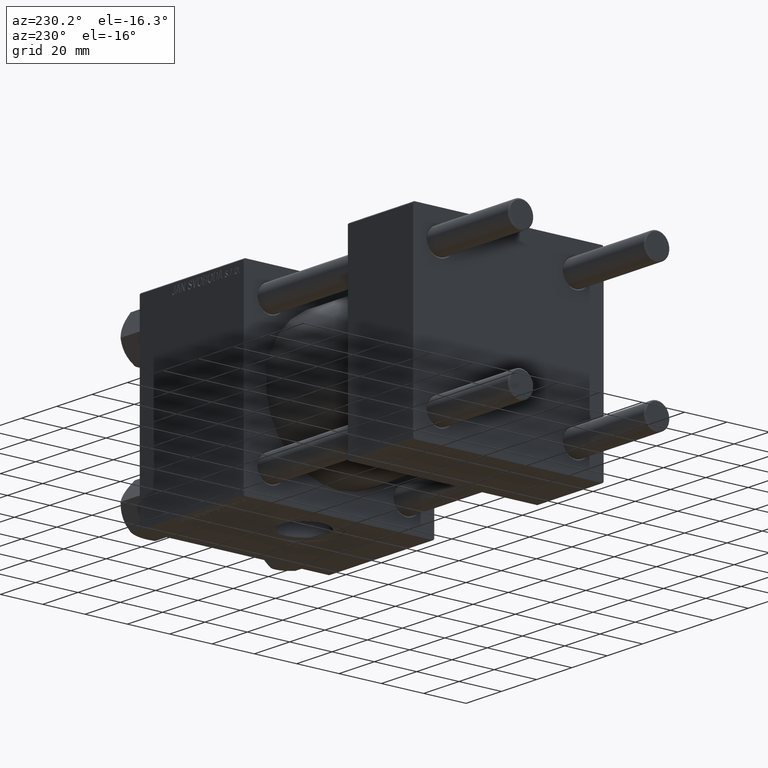
[diagram: clean part render]
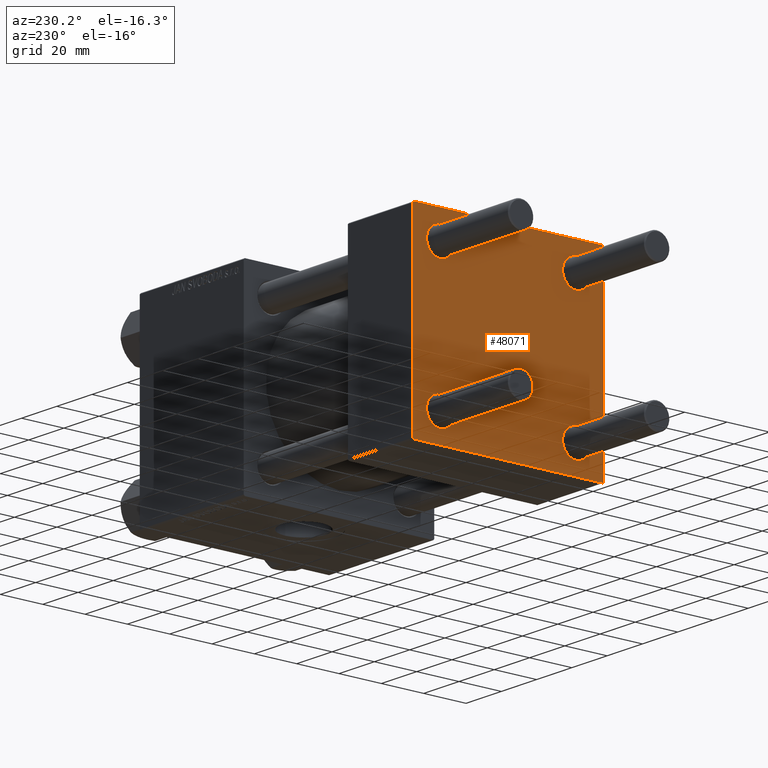
[diagram: same view with one face highlighted and labeled with its STEP entity id]
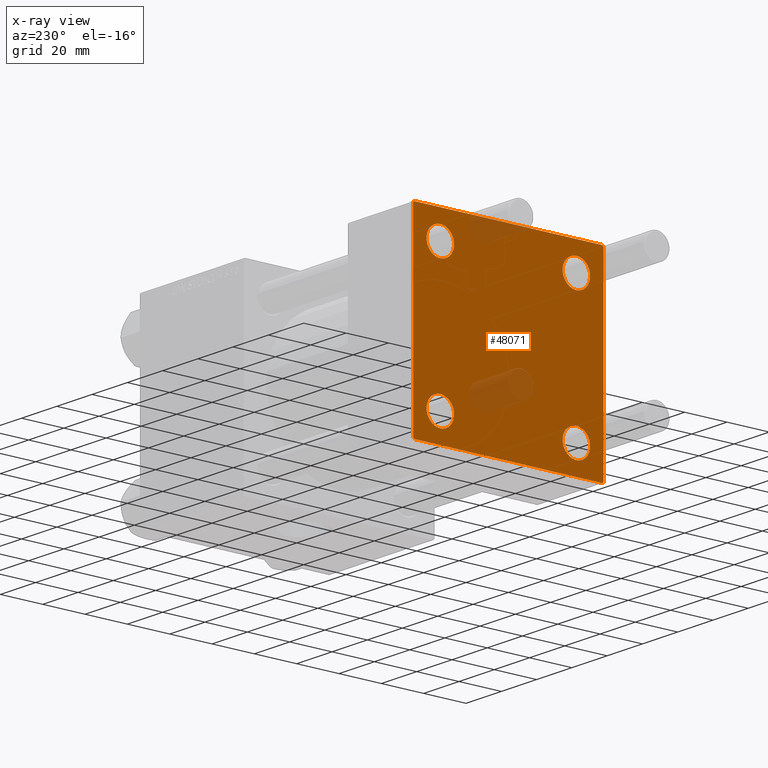
[diagram: x-ray of the same camera — body ghosted, the highlighted face saturated]
A machine part, auxiliary view. The second image highlights one B-rep face of the part: STEP entity #48071.
The next image is the same camera in x-ray: the body ghosted, the highlighted face saturated — about 7% of this face is hidden behind the body in this view.
In plain terms, the highlighted planar face has unit normal (-1, 0, 0).
Its self-contained STEP definition (entity closure, byte-faithful):
#356 = DIRECTION ( 'NONE',  ( 0.000000000000000000, -1.000000000000000000, -1.541976423090495633E-16 ) ) ;
#414 = DIRECTION ( 'NONE',  ( 0.000000000000000000, 0.000000000000000000, 1.000000000000000000 ) ) ;
#646 = AXIS2_PLACEMENT_3D ( 'NONE', #45941, #4719, #414 ) ;
#793 = ORIENTED_EDGE ( 'NONE', *, *, #44628, .F. ) ;
#1428 = AXIS2_PLACEMENT_3D ( 'NONE', #9106, #5552, #36399 ) ;
#1488 = CARTESIAN_POINT ( 'NONE',  ( 0.000000000000000000, -32.14999999999997726, 25.64999999999999147 ) ) ;
#1495 = VERTEX_POINT ( 'NONE', #1488 ) ;
#1712 = EDGE_CURVE ( 'NONE', #42425, #43292, #35413, .T. ) ;
#2007 = CARTESIAN_POINT ( 'NONE',  ( 0.000000000000000000, -32.14999999999997726, -38.64999999999999147 ) ) ;
#2416 = ORIENTED_EDGE ( 'NONE', *, *, #47906, .T. ) ;
#4650 = CIRCLE ( 'NONE', #20818, 6.499999999999977796 ) ;
#4719 = DIRECTION ( 'NONE',  ( 1.000000000000000000, -0.000000000000000000, 0.000000000000000000 ) ) ;
#5089 = VERTEX_POINT ( 'NONE', #21264 ) ;
#5098 = LINE ( 'NONE', #8228, #43207 ) ;
#5173 = DIRECTION ( 'NONE',  ( -0.000000000000000000, -0.7071067811865474617, -0.7071067811865474617 ) ) ;
#5552 = DIRECTION ( 'NONE',  ( 1.000000000000000000, -0.000000000000000000, 0.000000000000000000 ) ) ;
#5956 = EDGE_CURVE ( 'NONE', #39986, #1495, #37113, .T. ) ;
#6195 = VERTEX_POINT ( 'NONE', #46238 ) ;
#7716 = ORIENTED_EDGE ( 'NONE', *, *, #22019, .T. ) ;
#7892 = VECTOR ( 'NONE', #15500, 1000.000000000000000 ) ;
#7951 = CIRCLE ( 'NONE', #646, 6.499999999999977796 ) ;
#8185 = EDGE_CURVE ( 'NONE', #21867, #11467, #15914, .T. ) ;
#8225 = LINE ( 'NONE', #39286, #48883 ) ;
#8228 = CARTESIAN_POINT ( 'NONE',  ( 0.000000000000000000, 44.99999999999998579, -44.99999999999998579 ) ) ;
#9106 = CARTESIAN_POINT ( 'NONE',  ( 0.000000000000000000, 32.14999999999999147, -32.15000000000000568 ) ) ;
#9408 = CARTESIAN_POINT ( 'NONE',  ( 0.000000000000000000, 32.14999999999999147, 32.15000000000000568 ) ) ;
#9500 = DIRECTION ( 'NONE',  ( 1.000000000000000000, -0.000000000000000000, 0.000000000000000000 ) ) ;
#9586 = ORIENTED_EDGE ( 'NONE', *, *, #12523, .T. ) ;
#9848 = DIRECTION ( 'NONE',  ( 0.000000000000000000, 0.000000000000000000, 1.000000000000000000 ) ) ;
#10130 = EDGE_LOOP ( 'NONE', ( #29462, #24159, #9586, #2416, #20839, #43015, #793, #38709 ) ) ;
#10407 = AXIS2_PLACEMENT_3D ( 'NONE', #17690, #44465, #9848 ) ;
#11467 = VERTEX_POINT ( 'NONE', #45111 ) ;
#11612 = VERTEX_POINT ( 'NONE', #19841 ) ;
#11666 = DIRECTION ( 'NONE',  ( 0.000000000000000000, 7.709882115452476934E-17, -1.000000000000000000 ) ) ;
#11730 = ORIENTED_EDGE ( 'NONE', *, *, #5956, .T. ) ;
#11922 = CIRCLE ( 'NONE', #1428, 6.499999999999977796 ) ;
#12523 = EDGE_CURVE ( 'NONE', #25565, #11612, #5098, .T. ) ;
#12764 = CARTESIAN_POINT ( 'NONE',  ( 0.000000000000000000, 32.14999999999999147, -32.15000000000000568 ) ) ;
#12854 = DIRECTION ( 'NONE',  ( -0.000000000000000000, 0.7071067811865425767, 0.7071067811865524577 ) ) ;
#12996 = AXIS2_PLACEMENT_3D ( 'NONE', #13392, #43970, #35897 ) ;
#13392 = CARTESIAN_POINT ( 'NONE',  ( 0.000000000000000000, -32.14999999999997726, -32.15000000000001279 ) ) ;
#13823 = DIRECTION ( 'NONE',  ( 0.000000000000000000, 0.000000000000000000, -1.000000000000000000 ) ) ;
#14268 = CARTESIAN_POINT ( 'NONE',  ( 0.000000000000000000, -32.14999999999997726, 32.15000000000001279 ) ) ;
#15500 = DIRECTION ( 'NONE',  ( 0.000000000000000000, -1.000000000000000000, -1.541976423090495387E-16 ) ) ;
#15529 = AXIS2_PLACEMENT_3D ( 'NONE', #48426, #9500, #47668 ) ;
#15914 = LINE ( 'NONE', #46998, #35820 ) ;
#16310 = DIRECTION ( 'NONE',  ( 0.000000000000000000, -0.7071067811865474617, 0.7071067811865474617 ) ) ;
#16925 = ORIENTED_EDGE ( 'NONE', *, *, #23566, .T. ) ;
#17690 = CARTESIAN_POINT ( 'NONE',  ( 0.000000000000000000, -32.14999999999997726, 32.15000000000001279 ) ) ;
#17767 = EDGE_LOOP ( 'NONE', ( #7716, #30962 ) ) ;
#17865 = ORIENTED_EDGE ( 'NONE', *, *, #30551, .T. ) ;
#19037 = LINE ( 'NONE', #34711, #7892 ) ;
#19608 = DIRECTION ( 'NONE',  ( 0.000000000000000000, 0.7071067811865474617, -0.7071067811865474617 ) ) ;
#19841 = CARTESIAN_POINT ( 'NONE',  ( 0.000000000000000000, -44.49999999999995737, -45.00000000000000000 ) ) ;
#20424 = VERTEX_POINT ( 'NONE', #26136 ) ;
#20818 = AXIS2_PLACEMENT_3D ( 'NONE', #9408, #36459, #24845 ) ;
#20839 = ORIENTED_EDGE ( 'NONE', *, *, #36723, .F. ) ;
#21264 = CARTESIAN_POINT ( 'NONE',  ( 0.000000000000000000, 44.99999999999998579, -44.49999999999995737 ) ) ;
#21792 = FACE_OUTER_BOUND ( 'NONE', #10130, .T. ) ;
#21794 = EDGE_CURVE ( 'NONE', #36267, #39742, #4650, .T. ) ;
#21867 = VERTEX_POINT ( 'NONE', #43236 ) ;
#22019 = EDGE_CURVE ( 'NONE', #43292, #42425, #11922, .T. ) ;
#23067 = CARTESIAN_POINT ( 'NONE',  ( 0.000000000000000000, -45.00000000000000711, 45.00000000000000000 ) ) ;
#23115 = VECTOR ( 'NONE', #11666, 1000.000000000000000 ) ;
#23165 = EDGE_LOOP ( 'NONE', ( #17865, #39717 ) ) ;
#23566 = EDGE_CURVE ( 'NONE', #39742, #36267, #7951, .T. ) ;
#24159 = ORIENTED_EDGE ( 'NONE', *, *, #25489, .T. ) ;
#24167 = VERTEX_POINT ( 'NONE', #47758 ) ;
#24265 = EDGE_CURVE ( 'NONE', #1495, #39986, #39447, .T. ) ;
#24421 = CARTESIAN_POINT ( 'NONE',  ( 0.000000000000000000, 44.74999999999998579, -44.74999999999998579 ) ) ;
#24845 = DIRECTION ( 'NONE',  ( 0.000000000000000000, 0.000000000000000000, 1.000000000000000000 ) ) ;
#25071 = VECTOR ( 'NONE', #13823, 1000.000000000000000 ) ;
#25489 = EDGE_CURVE ( 'NONE', #5089, #25565, #44352, .T. ) ;
#25565 = VERTEX_POINT ( 'NONE', #30175 ) ;
#26136 = CARTESIAN_POINT ( 'NONE',  ( 0.000000000000000000, 44.49999999999998579, 45.00000000000001421 ) ) ;
#26660 = DIRECTION ( 'NONE',  ( 1.000000000000000000, -0.000000000000000000, 0.000000000000000000 ) ) ;
#27355 = LINE ( 'NONE', #23067, #23115 ) ;
#27445 = CARTESIAN_POINT ( 'NONE',  ( 0.000000000000000000, -44.74999999999998579, -44.74999999999998579 ) ) ;
#27464 = ORIENTED_EDGE ( 'NONE', *, *, #21794, .T. ) ;
#28181 = FACE_BOUND ( 'NONE', #40789, .T. ) ;
#28954 = EDGE_CURVE ( 'NONE', #24167, #5089, #33041, .T. ) ;
#29001 = VECTOR ( 'NONE', #5173, 1000.000000000000114 ) ;
#29162 = CARTESIAN_POINT ( 'NONE',  ( 0.000000000000000000, -32.14999999999997726, -25.65000000000003411 ) ) ;
#29246 = CARTESIAN_POINT ( 'NONE',  ( 0.000000000000000000, 44.99999999999998579, 45.00000000000001421 ) ) ;
#29462 = ORIENTED_EDGE ( 'NONE', *, *, #28954, .T. ) ;
#30175 = CARTESIAN_POINT ( 'NONE',  ( 0.000000000000000000, 44.49999999999998579, -44.99999999999998579 ) ) ;
#30551 = EDGE_CURVE ( 'NONE', #36636, #32903, #49329, .T. ) ;
#30962 = ORIENTED_EDGE ( 'NONE', *, *, #1712, .T. ) ;
#31469 = CARTESIAN_POINT ( 'NONE',  ( 0.000000000000000000, 32.14999999999999147, -25.65000000000002700 ) ) ;
#31478 = LINE ( 'NONE', #27445, #34684 ) ;
#31501 = DIRECTION ( 'NONE',  ( 1.000000000000000000, -0.000000000000000000, 0.000000000000000000 ) ) ;
#31502 = AXIS2_PLACEMENT_3D ( 'NONE', #14268, #26660, #42060 ) ;
#31950 = FACE_BOUND ( 'NONE', #23165, .T. ) ;
#32903 = VERTEX_POINT ( 'NONE', #2007 ) ;
#33041 = LINE ( 'NONE', #29246, #25071 ) ;
#33642 = EDGE_CURVE ( 'NONE', #32903, #36636, #42985, .T. ) ;
#33647 = DIRECTION ( 'NONE',  ( -1.000000000000000000, 0.000000000000000000, -0.000000000000000000 ) ) ;
#34684 = VECTOR ( 'NONE', #16310, 1000.000000000000114 ) ;
#34711 = CARTESIAN_POINT ( 'NONE',  ( 0.000000000000000000, 44.99999999999998579, 45.00000000000001421 ) ) ;
#35413 = CIRCLE ( 'NONE', #41849, 6.499999999999977796 ) ;
#35820 = VECTOR ( 'NONE', #12854, 1000.000000000000114 ) ;
#35897 = DIRECTION ( 'NONE',  ( 0.000000000000000000, 0.000000000000000000, 1.000000000000000000 ) ) ;
#35990 = EDGE_LOOP ( 'NONE', ( #27464, #16925 ) ) ;
#36267 = VERTEX_POINT ( 'NONE', #43860 ) ;
#36399 = DIRECTION ( 'NONE',  ( 0.000000000000000000, 0.000000000000000000, 1.000000000000000000 ) ) ;
#36459 = DIRECTION ( 'NONE',  ( 1.000000000000000000, -0.000000000000000000, 0.000000000000000000 ) ) ;
#36636 = VERTEX_POINT ( 'NONE', #29162 ) ;
#36723 = EDGE_CURVE ( 'NONE', #21867, #6195, #27355, .T. ) ;
#37113 = CIRCLE ( 'NONE', #31502, 6.500000000000019540 ) ;
#37187 = CARTESIAN_POINT ( 'NONE',  ( 0.000000000000000000, 0.000000000000000000, 0.000000000000000000 ) ) ;
#37878 = CARTESIAN_POINT ( 'NONE',  ( 0.000000000000000000, 32.14999999999999147, -38.64999999999998437 ) ) ;
#38586 = EDGE_CURVE ( 'NONE', #20424, #24167, #8225, .T. ) ;
#38709 = ORIENTED_EDGE ( 'NONE', *, *, #38586, .T. ) ;
#39286 = CARTESIAN_POINT ( 'NONE',  ( 0.000000000000000000, 44.74999999999999289, 44.74999999999999289 ) ) ;
#39447 = CIRCLE ( 'NONE', #10407, 6.500000000000019540 ) ;
#39500 = AXIS2_PLACEMENT_3D ( 'NONE', #37187, #33647, #49062 ) ;
#39538 = FACE_BOUND ( 'NONE', #35990, .T. ) ;
#39717 = ORIENTED_EDGE ( 'NONE', *, *, #33642, .T. ) ;
#39742 = VERTEX_POINT ( 'NONE', #44279 ) ;
#39986 = VERTEX_POINT ( 'NONE', #46272 ) ;
#40789 = EDGE_LOOP ( 'NONE', ( #11730, #43972 ) ) ;
#41849 = AXIS2_PLACEMENT_3D ( 'NONE', #12764, #31501, #43604 ) ;
#42060 = DIRECTION ( 'NONE',  ( 0.000000000000000000, 0.000000000000000000, 1.000000000000000000 ) ) ;
#42425 = VERTEX_POINT ( 'NONE', #37878 ) ;
#42985 = CIRCLE ( 'NONE', #15529, 6.499999999999977796 ) ;
#43015 = ORIENTED_EDGE ( 'NONE', *, *, #8185, .T. ) ;
#43207 = VECTOR ( 'NONE', #356, 1000.000000000000000 ) ;
#43236 = CARTESIAN_POINT ( 'NONE',  ( 0.000000000000000000, -45.00000000000000711, 44.49999999999997158 ) ) ;
#43292 = VERTEX_POINT ( 'NONE', #31469 ) ;
#43581 = FACE_BOUND ( 'NONE', #17767, .T. ) ;
#43604 = DIRECTION ( 'NONE',  ( 0.000000000000000000, 0.000000000000000000, 1.000000000000000000 ) ) ;
#43860 = CARTESIAN_POINT ( 'NONE',  ( 0.000000000000000000, 32.14999999999999147, 38.64999999999999147 ) ) ;
#43970 = DIRECTION ( 'NONE',  ( 1.000000000000000000, -0.000000000000000000, 0.000000000000000000 ) ) ;
#43972 = ORIENTED_EDGE ( 'NONE', *, *, #24265, .T. ) ;
#44279 = CARTESIAN_POINT ( 'NONE',  ( 0.000000000000000000, 32.14999999999999147, 25.65000000000002700 ) ) ;
#44352 = LINE ( 'NONE', #24421, #29001 ) ;
#44465 = DIRECTION ( 'NONE',  ( 1.000000000000000000, -0.000000000000000000, 0.000000000000000000 ) ) ;
#44628 = EDGE_CURVE ( 'NONE', #20424, #11467, #19037, .T. ) ;
#45111 = CARTESIAN_POINT ( 'NONE',  ( 0.000000000000000000, -44.49999999999995737, 45.00000000000000000 ) ) ;
#45941 = CARTESIAN_POINT ( 'NONE',  ( 0.000000000000000000, 32.14999999999999147, 32.15000000000000568 ) ) ;
#46238 = CARTESIAN_POINT ( 'NONE',  ( 0.000000000000000000, -45.00000000000000000, -44.49999999999995737 ) ) ;
#46272 = CARTESIAN_POINT ( 'NONE',  ( 0.000000000000000000, -32.14999999999997726, 38.65000000000003411 ) ) ;
#46998 = CARTESIAN_POINT ( 'NONE',  ( -0.000000000000000000, -44.75000000000029843, 44.74999999999967315 ) ) ;
#47668 = DIRECTION ( 'NONE',  ( 0.000000000000000000, 0.000000000000000000, 1.000000000000000000 ) ) ;
#47758 = CARTESIAN_POINT ( 'NONE',  ( 0.000000000000000000, 44.99999999999998579, 44.50000000000001421 ) ) ;
#47906 = EDGE_CURVE ( 'NONE', #11612, #6195, #31478, .T. ) ;
#48071 = ADVANCED_FACE ( 'NONE', ( #28181, #31950, #43581, #39538, #21792 ), #48321, .T. ) ;
#48321 = PLANE ( 'NONE',  #39500 ) ;
#48426 = CARTESIAN_POINT ( 'NONE',  ( 0.000000000000000000, -32.14999999999997726, -32.15000000000001279 ) ) ;
#48883 = VECTOR ( 'NONE', #19608, 1000.000000000000114 ) ;
#49062 = DIRECTION ( 'NONE',  ( -0.000000000000000000, 0.000000000000000000, 1.000000000000000000 ) ) ;
#49329 = CIRCLE ( 'NONE', #12996, 6.499999999999977796 ) ;